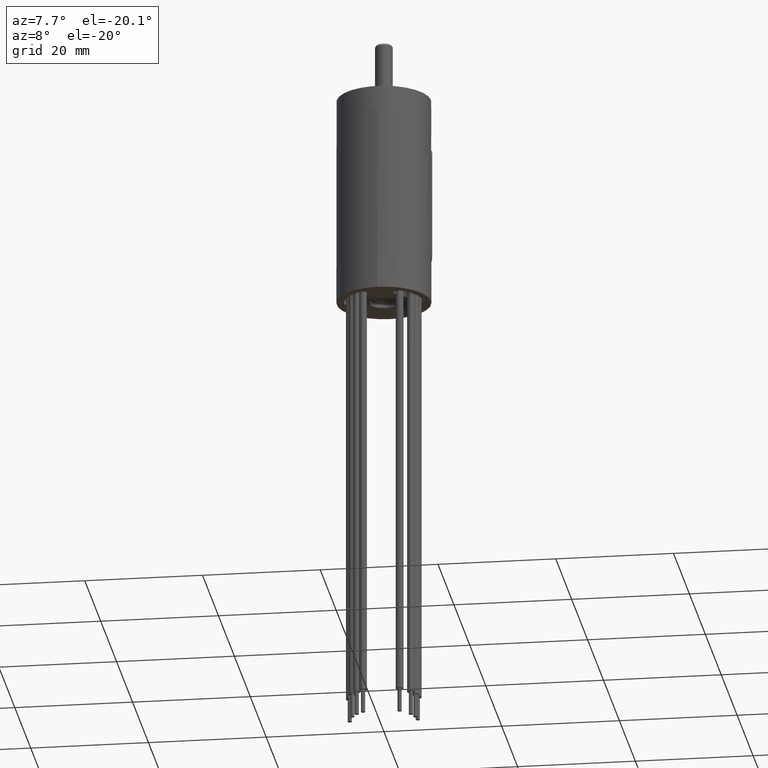
[diagram: clean part render]
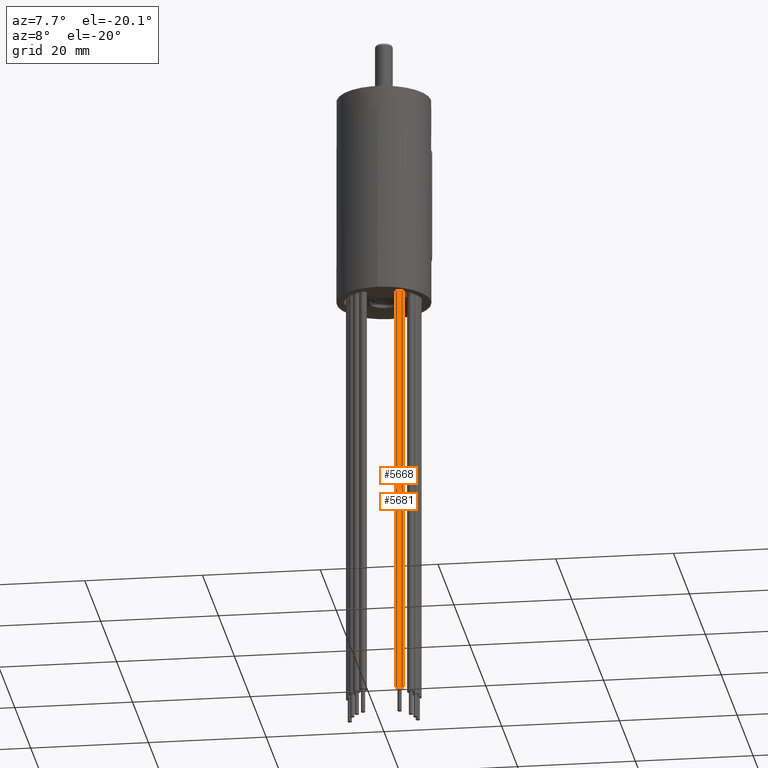
[diagram: same view with one multi-face feature highlighted, each face labeled with its STEP entity id]
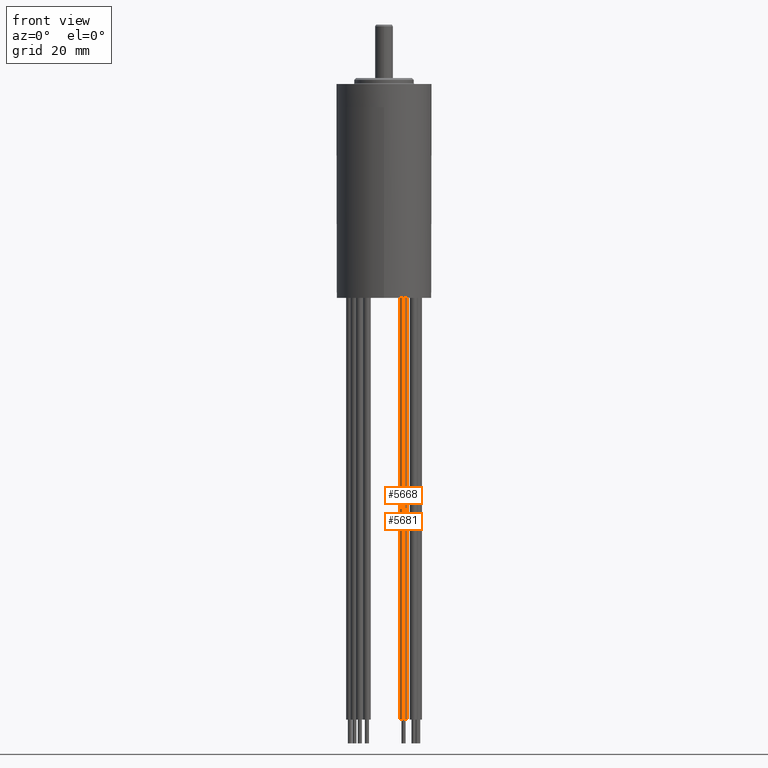
[diagram: same view with one multi-face feature highlighted, each face labeled with its STEP entity id]
A machine part, auxiliary view. The highlighted faces form ONE feature: a constant-radius fillet chain: 2 tangent blend faces with common blend radius 0.65 mm. The faces share edges in the B-rep.
A second angle (front view) of the same feature is appended — it is thin or edge-on in the first view.
Their STEP definitions:
[1] entity #5668 (Cylinder):
#768=CARTESIAN_POINT('',(3.298064509019E0,-4.710124254662E0,2.6E0));
#769=DIRECTION('',(0.E0,0.E0,1.E0));
#770=DIRECTION('',(0.E0,1.E0,0.E0));
#771=AXIS2_PLACEMENT_3D('',#768,#769,#770);
#1785=DIRECTION('',(0.E0,0.E0,-1.E0));
#1786=VECTOR('',#1785,7.46E1);
#1787=CARTESIAN_POINT('',(3.298064509019E0,-4.060124254662E0,2.6E0));
#1788=LINE('',#1787,#1786);
#1789=DIRECTION('',(0.E0,0.E0,1.E0));
#1790=VECTOR('',#1789,7.46E1);
#1791=CARTESIAN_POINT('',(3.298064509019E0,-5.360124254662E0,-7.2E1));
#1792=LINE('',#1791,#1790);
#1793=CARTESIAN_POINT('',(3.298064509019E0,-4.710124254662E0,-7.2E1));
#1794=DIRECTION('',(0.E0,0.E0,1.E0));
#1795=DIRECTION('',(0.E0,1.E0,0.E0));
#1796=AXIS2_PLACEMENT_3D('',#1793,#1794,#1795);
#3126=CARTESIAN_POINT('',(3.298064509019E0,-4.060124254662E0,-7.2E1));
#3127=CARTESIAN_POINT('',(3.298064509019E0,-5.360124254662E0,-7.2E1));
#3128=VERTEX_POINT('',#3126);
#3129=VERTEX_POINT('',#3127);
#3461=CARTESIAN_POINT('',(3.298064509019E0,-4.060124254662E0,2.6E0));
#3462=CARTESIAN_POINT('',(3.298064509019E0,-5.360124254662E0,2.6E0));
#3463=VERTEX_POINT('',#3461);
#3464=VERTEX_POINT('',#3462);
#5654=CARTESIAN_POINT('',(3.298064509019E0,-4.710124254662E0,-7.3492E1));
#5655=DIRECTION('',(0.E0,0.E0,1.E0));
#5656=DIRECTION('',(0.E0,1.E0,0.E0));
#5657=AXIS2_PLACEMENT_3D('',#5654,#5655,#5656);
#5658=CYLINDRICAL_SURFACE('',#5657,6.5E-1);
#5659=ORIENTED_EDGE('',*,*,#4400,.T.);
#5661=ORIENTED_EDGE('',*,*,#5660,.F.);
#5663=ORIENTED_EDGE('',*,*,#5662,.F.);
#5665=ORIENTED_EDGE('',*,*,#5664,.F.);
#5666=EDGE_LOOP('',(#5659,#5661,#5663,#5665));
#5667=FACE_OUTER_BOUND('',#5666,.F.);
#5668=ADVANCED_FACE('',(#5667),#5658,.T.);
#772=CIRCLE('',#771,6.5E-1);
#1797=CIRCLE('',#1796,6.5E-1);
#4400=EDGE_CURVE('',#3463,#3464,#772,.T.);
#5660=EDGE_CURVE('',#3129,#3464,#1792,.T.);
#5662=EDGE_CURVE('',#3128,#3129,#1797,.T.);
#5664=EDGE_CURVE('',#3463,#3128,#1788,.T.);
[2] entity #5681 (Cylinder):
#773=CARTESIAN_POINT('',(3.298064509019E0,-4.710124254662E0,2.6E0));
#774=DIRECTION('',(0.E0,0.E0,-1.E0));
#775=DIRECTION('',(0.E0,1.E0,0.E0));
#776=AXIS2_PLACEMENT_3D('',#773,#774,#775);
#1785=DIRECTION('',(0.E0,0.E0,-1.E0));
#1786=VECTOR('',#1785,7.46E1);
#1787=CARTESIAN_POINT('',(3.298064509019E0,-4.060124254662E0,2.6E0));
#1788=LINE('',#1787,#1786);
#1789=DIRECTION('',(0.E0,0.E0,1.E0));
#1790=VECTOR('',#1789,7.46E1);
#1791=CARTESIAN_POINT('',(3.298064509019E0,-5.360124254662E0,-7.2E1));
#1792=LINE('',#1791,#1790);
#1798=CARTESIAN_POINT('',(3.298064509019E0,-4.710124254662E0,-7.2E1));
#1799=DIRECTION('',(0.E0,0.E0,1.E0));
#1800=DIRECTION('',(0.E0,-1.E0,0.E0));
#1801=AXIS2_PLACEMENT_3D('',#1798,#1799,#1800);
#3126=CARTESIAN_POINT('',(3.298064509019E0,-4.060124254662E0,-7.2E1));
#3127=CARTESIAN_POINT('',(3.298064509019E0,-5.360124254662E0,-7.2E1));
#3128=VERTEX_POINT('',#3126);
#3129=VERTEX_POINT('',#3127);
#3461=CARTESIAN_POINT('',(3.298064509019E0,-4.060124254662E0,2.6E0));
#3462=CARTESIAN_POINT('',(3.298064509019E0,-5.360124254662E0,2.6E0));
#3463=VERTEX_POINT('',#3461);
#3464=VERTEX_POINT('',#3462);
#5669=CARTESIAN_POINT('',(3.298064509019E0,-4.710124254662E0,-7.3492E1));
#5670=DIRECTION('',(0.E0,0.E0,1.E0));
#5671=DIRECTION('',(0.E0,1.E0,0.E0));
#5672=AXIS2_PLACEMENT_3D('',#5669,#5670,#5671);
#5673=CYLINDRICAL_SURFACE('',#5672,6.5E-1);
#5674=ORIENTED_EDGE('',*,*,#4402,.F.);
#5675=ORIENTED_EDGE('',*,*,#5664,.T.);
#5677=ORIENTED_EDGE('',*,*,#5676,.F.);
#5678=ORIENTED_EDGE('',*,*,#5660,.T.);
#5679=EDGE_LOOP('',(#5674,#5675,#5677,#5678));
#5680=FACE_OUTER_BOUND('',#5679,.F.);
#5681=ADVANCED_FACE('',(#5680),#5673,.T.);
#777=CIRCLE('',#776,6.5E-1);
#1802=CIRCLE('',#1801,6.5E-1);
#4402=EDGE_CURVE('',#3463,#3464,#777,.T.);
#5660=EDGE_CURVE('',#3129,#3464,#1792,.T.);
#5664=EDGE_CURVE('',#3463,#3128,#1788,.T.);
#5676=EDGE_CURVE('',#3129,#3128,#1802,.T.);